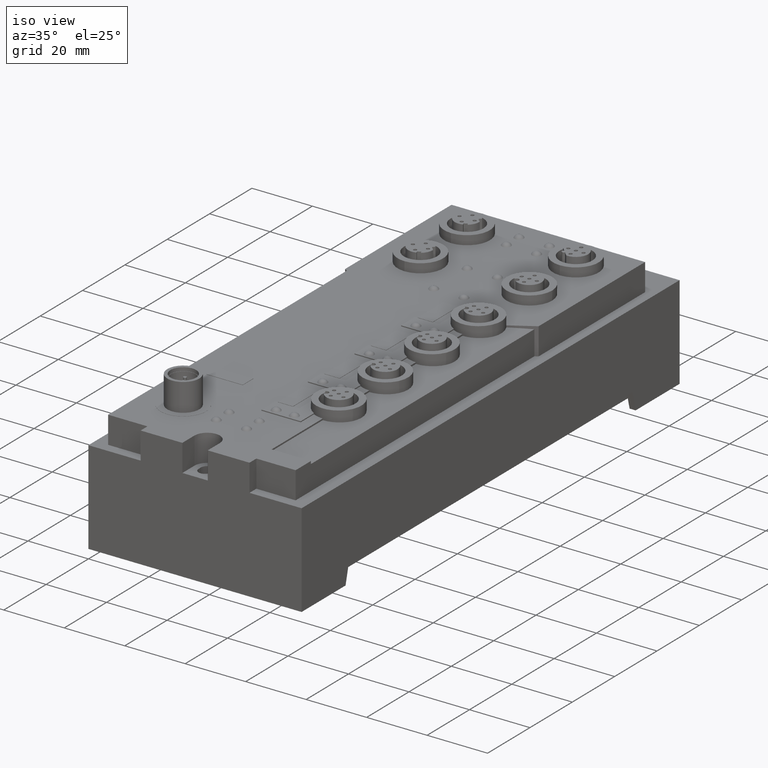
[diagram: clean part render]
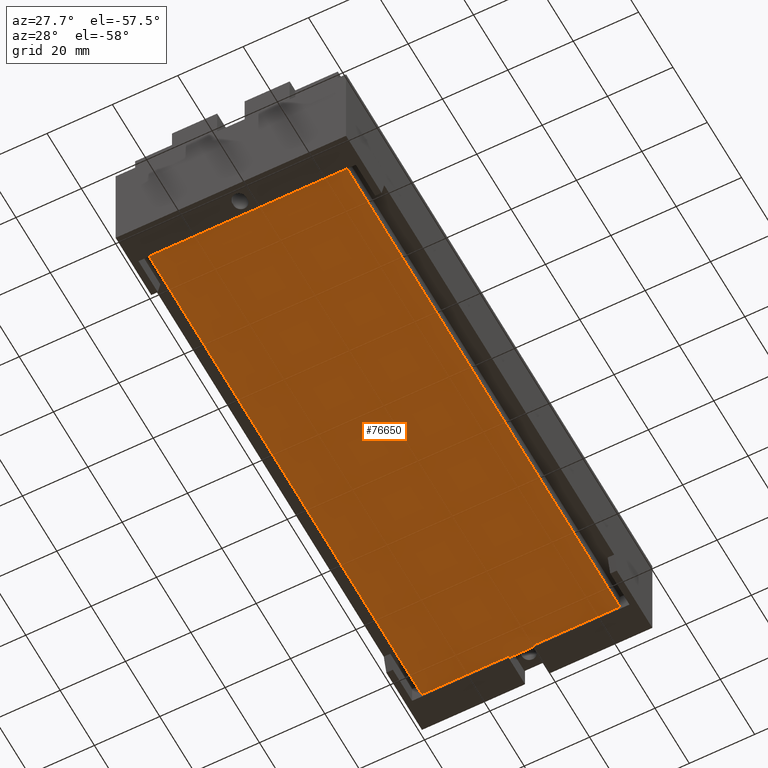
[diagram: tour spotlight — one face highlighted and labeled with its STEP entity id]
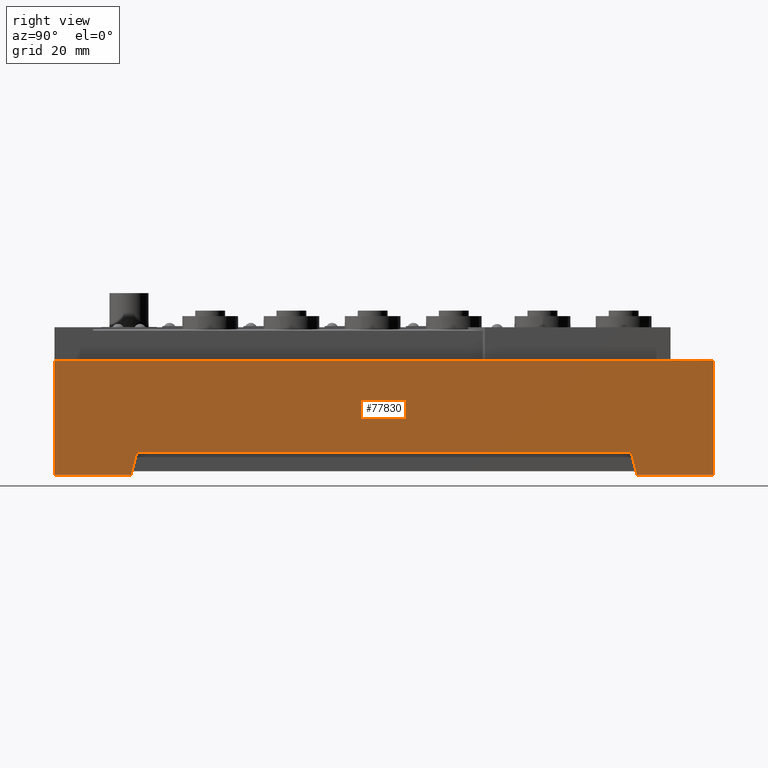
[diagram: tour spotlight — one face highlighted and labeled with its STEP entity id]
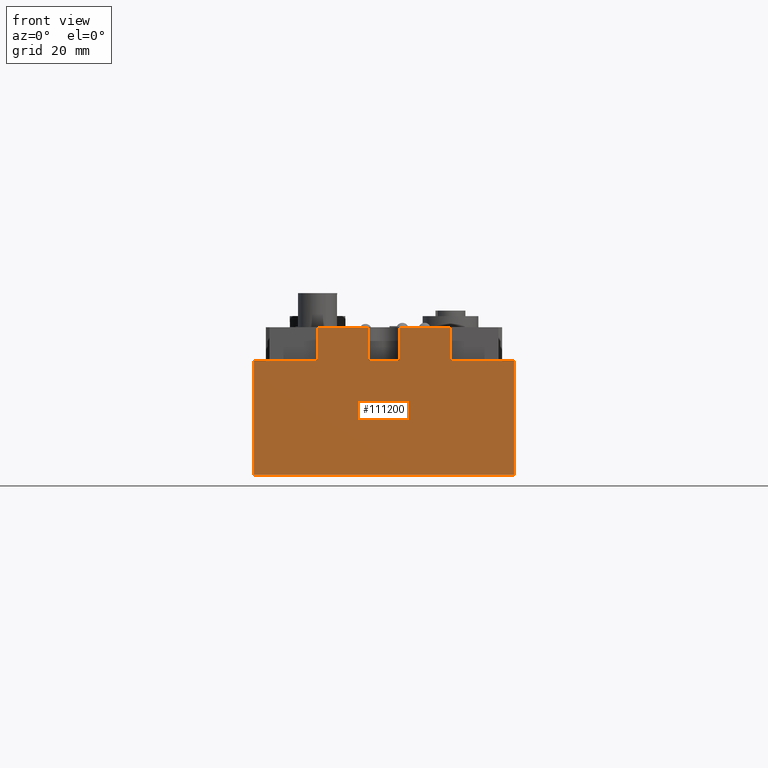
[diagram: tour spotlight — one face highlighted and labeled with its STEP entity id]
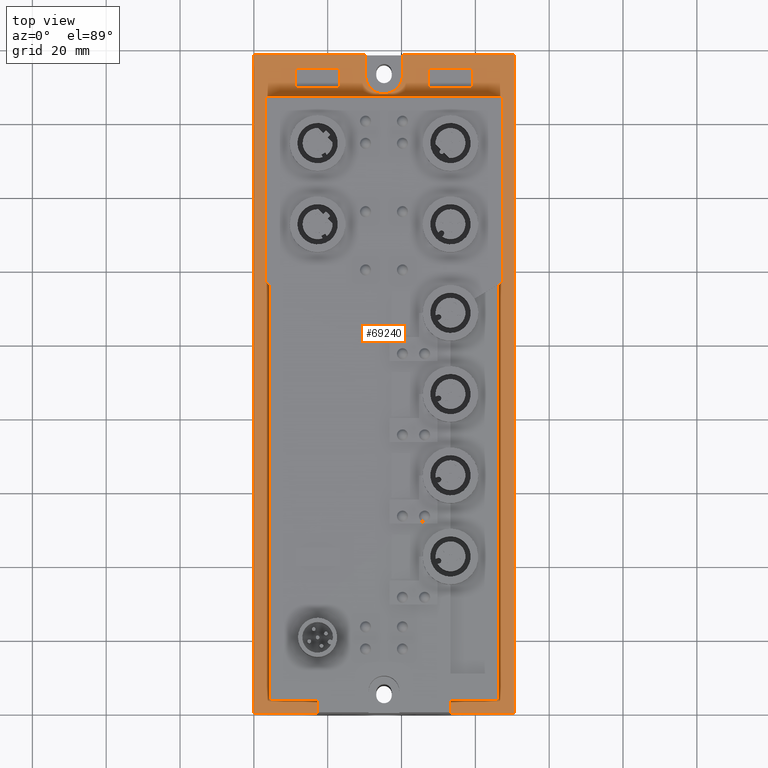
[diagram: tour spotlight — one face highlighted and labeled with its STEP entity id]
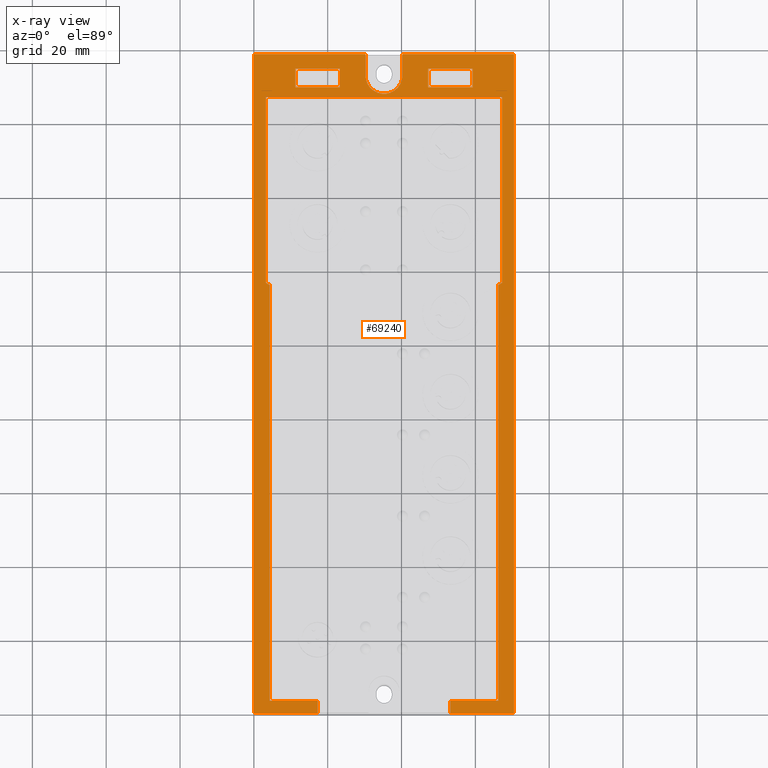
[diagram: x-ray of the same camera — body ghosted, this tour face saturated]
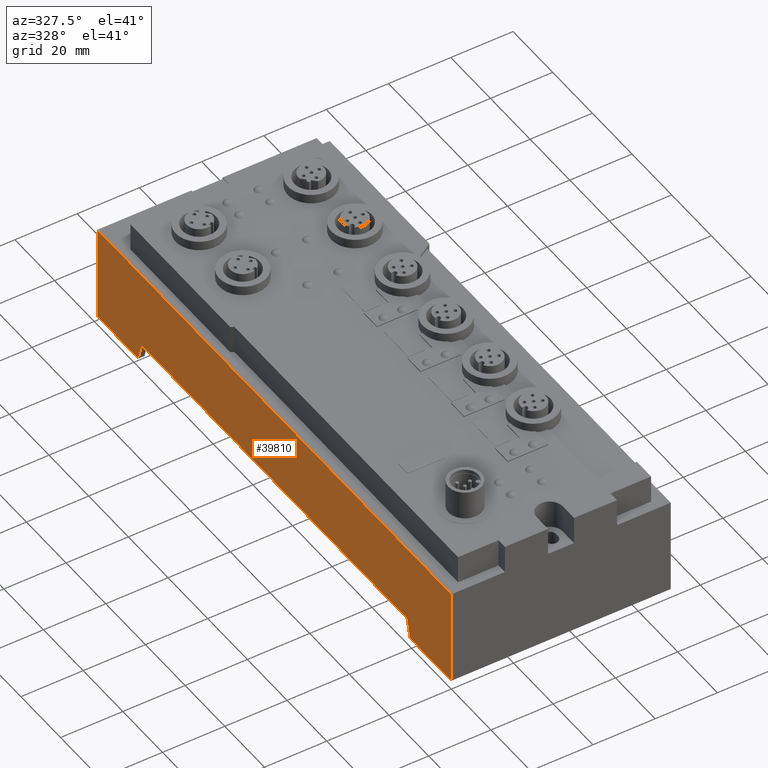
[diagram: tour spotlight — one face highlighted and labeled with its STEP entity id]
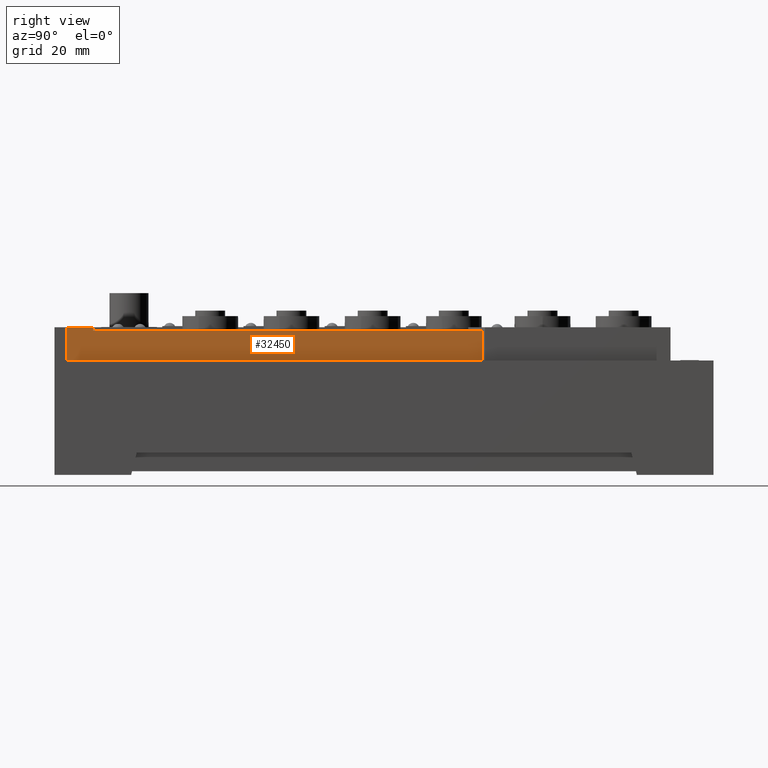
[diagram: tour spotlight — one face highlighted and labeled with its STEP entity id]
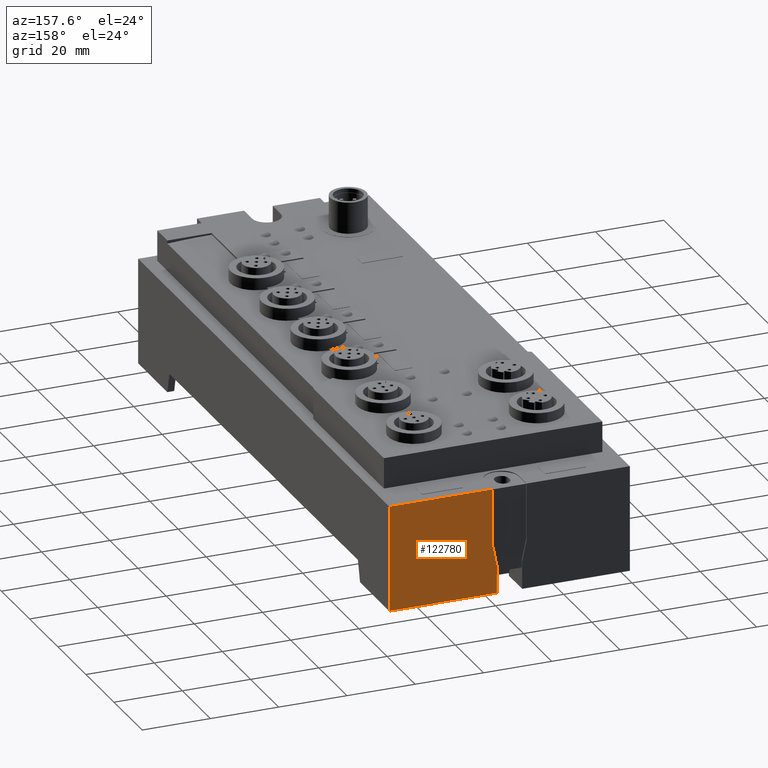
[diagram: tour spotlight — one face highlighted and labeled with its STEP entity id]
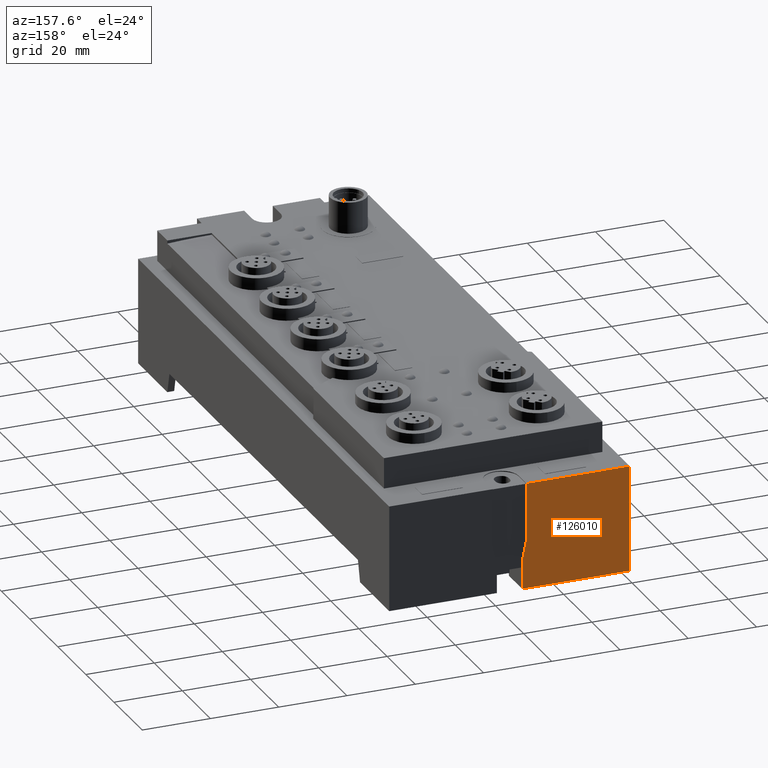
[diagram: tour spotlight — one face highlighted and labeled with its STEP entity id]
A machine part: a face-by-face anatomy tour. The part has 414 B-rep faces; the first image is the clean iso view, then the 8 largest visible faces are spotlighted one at a time (largest first), each with its STEP entity span.

Face 1 — auxiliary view, entity #76650. In plain terms, the highlighted planar face has unit normal (0, 0, -1).
Definition (entity closure, byte-faithful):
#4250=CARTESIAN_POINT('',(-72.800000000018,-36.9250000000052,
-38.9999999999925));
#4260=VERTEX_POINT('',#4250);
#4430=CARTESIAN_POINT('',(-72.800000000018,-196.424999999996,
-38.9999999999925));
#4440=VERTEX_POINT('',#4430);
#4470=CARTESIAN_POINT('',(-72.800000000018,0.,-38.9999999999925));
#4480=DIRECTION('',(0.,-1.,0.));
#4490=VECTOR('',#4480,1.);
#4500=LINE('',#4470,#4490);
#4510=EDGE_CURVE('',#4260,#4440,#4500,.T.);
#8050=CARTESIAN_POINT('',(-46.2,-36.9250000000052,-38.9999999999925));
#8060=VERTEX_POINT('',#8050);
#8090=CARTESIAN_POINT('',(-46.2,0.,-38.9999999999925));
#8100=DIRECTION('',(0.,-1.,0.));
#8110=VECTOR('',#8100,1.);
#8120=LINE('',#8090,#8110);
#8130=CARTESIAN_POINT('',(-46.2,-36.4250000000052,-38.9999999999925));
#8140=VERTEX_POINT('',#8130);
#8150=EDGE_CURVE('',#8140,#8060,#8120,.T.);
#33090=CARTESIAN_POINT('',(-12.200000000018,-36.9250000000052,
-38.9999999999925));
#33100=VERTEX_POINT('',#33090);
#33340=CARTESIAN_POINT('',(-38.8,-36.9250000000052,-38.9999999999925));
#33350=VERTEX_POINT('',#33340);
#33380=CARTESIAN_POINT('',(0.,-36.9250000000052,-38.9999999999925));
#33390=DIRECTION('',(1.,0.,0.));
#33400=VECTOR('',#33390,1.);
#33410=LINE('',#33380,#33400);
#33420=EDGE_CURVE('',#33350,#33100,#33410,.T.);
#67650=CARTESIAN_POINT('',(0.,-36.9250000000052,-38.9999999999925));
#67660=DIRECTION('',(-1.,0.,0.));
#67670=VECTOR('',#67660,1.);
#67680=LINE('',#67650,#67670);
#67690=EDGE_CURVE('',#8060,#4260,#67680,.T.);
#76260=CARTESIAN_POINT('',(-52.9939465163615,-162.331932113799,
-38.9999999999925));
#76270=DIRECTION('',(0.,0.,-1.));
#76280=DIRECTION('',(-1.,0.,0.));
#76290=AXIS2_PLACEMENT_3D('',#76260,#76270,#76280);
#76300=PLANE('',#76290);
#76310=CARTESIAN_POINT('',(-38.8,0.,-38.9999999999925));
#76320=DIRECTION('',(0.,1.,0.));
#76330=VECTOR('',#76320,1.);
#76340=LINE('',#76310,#76330);
#76350=CARTESIAN_POINT('',(-38.8,-36.4250000000052,-38.9999999999925));
#76360=VERTEX_POINT('',#76350);
#76370=EDGE_CURVE('',#33350,#76360,#76340,.T.);
#76380=ORIENTED_EDGE('',*,*,#76370,.F.);
#76390=CARTESIAN_POINT('',(0.,-36.4250000000052,-38.9999999999925));
#76400=DIRECTION('',(-1.,0.,0.));
#76410=VECTOR('',#76400,1.);
#76420=LINE('',#76390,#76410);
#76430=EDGE_CURVE('',#76360,#8140,#76420,.T.);
#76440=ORIENTED_EDGE('',*,*,#76430,.F.);
#76450=ORIENTED_EDGE('',*,*,#8150,.F.);
#76460=ORIENTED_EDGE('',*,*,#67690,.F.);
#76470=ORIENTED_EDGE('',*,*,#4510,.F.);
#76480=CARTESIAN_POINT('',(0.,-196.424999999996,-38.9999999999925));
#76490=DIRECTION('',(-1.,0.,0.));
#76500=VECTOR('',#76490,1.);
#76510=LINE('',#76480,#76500);
#76520=CARTESIAN_POINT('',(-12.200000000018,-196.424999999996,
-38.9999999999925));
#76530=VERTEX_POINT('',#76520);
#76540=EDGE_CURVE('',#76530,#4440,#76510,.T.);
#76550=ORIENTED_EDGE('',*,*,#76540,.T.);
#76560=CARTESIAN_POINT('',(-12.200000000018,0.,-38.9999999999925));
#76570=DIRECTION('',(0.,1.,0.));
#76580=VECTOR('',#76570,1.);
#76590=LINE('',#76560,#76580);
#76600=EDGE_CURVE('',#76530,#33100,#76590,.T.);
#76610=ORIENTED_EDGE('',*,*,#76600,.F.);
#76620=ORIENTED_EDGE('',*,*,#33420,.T.);
#76630=EDGE_LOOP('',(#76620,#76610,#76550,#76470,#76460,#76450,#76440,
#76380));
#76640=FACE_OUTER_BOUND('',#76630,.T.);
#76650=ADVANCED_FACE('',(#76640),#76300,.T.);

Face 2 — right view, entity #77830. In plain terms, the highlighted planar face has unit normal (1, 0, 0).
Definition (entity closure, byte-faithful):
#3800=CARTESIAN_POINT('',(-7.25000000000002,-185.175,-39.9999999999976))
;
#3810=VERTEX_POINT('',#3800);
#3840=CARTESIAN_POINT('',(-7.25000000000002,-175.175,0.));
#3850=DIRECTION('',(0.,-0.242535625036333,-0.970142500145332));
#3860=VECTOR('',#3850,1.);
#3870=LINE('',#3840,#3860);
#3880=CARTESIAN_POINT('',(-7.25000000000002,-183.675,-33.9999999999976))
;
#3890=VERTEX_POINT('',#3880);
#3900=EDGE_CURVE('',#3890,#3810,#3870,.T.);
#23680=CARTESIAN_POINT('',(-7.25000000000002,0.,-33.9999999999976));
#23690=DIRECTION('',(0.,1.,0.));
#23700=VECTOR('',#23690,1.);
#23710=LINE('',#23680,#23700);
#23720=CARTESIAN_POINT('',(-7.25000000000002,-49.6750000000004,
-33.9999999999976));
#23730=VERTEX_POINT('',#23720);
#23740=EDGE_CURVE('',#3890,#23730,#23710,.T.);
#68540=CARTESIAN_POINT('',(-7.25000000000002,-27.425,-9.00000000000003))
;
#68550=VERTEX_POINT('',#68540);
#68580=CARTESIAN_POINT('',(-7.25000000000002,0.,-9.00000000000003));
#68590=DIRECTION('',(0.,1.,0.));
#68600=VECTOR('',#68590,1.);
#68610=LINE('',#68580,#68600);
#68620=CARTESIAN_POINT('',(-7.25000000000002,-205.925,-9.00000000000003)
);
#68630=VERTEX_POINT('',#68620);
#68640=EDGE_CURVE('',#68630,#68550,#68610,.T.);
#77370=CARTESIAN_POINT('',(-7.25000000000002,-205.925,-39.9999999999976)
);
#77380=DIRECTION('',(1.,0.,0.));
#77390=DIRECTION('',(0.,1.,0.));
#77400=AXIS2_PLACEMENT_3D('',#77370,#77380,#77390);
#77410=PLANE('',#77400);
#77420=CARTESIAN_POINT('',(-7.25000000000002,-27.425,0.));
#77430=DIRECTION('',(0.,0.,1.));
#77440=VECTOR('',#77430,1.);
#77450=LINE('',#77420,#77440);
#77460=CARTESIAN_POINT('',(-7.25000000000002,-27.425,-39.9999999999976))
;
#77470=VERTEX_POINT('',#77460);
#77480=EDGE_CURVE('',#77470,#68550,#77450,.T.);
#77490=ORIENTED_EDGE('',*,*,#77480,.T.);
#77500=CARTESIAN_POINT('',(-7.25000000000002,0.,-39.9999999999976));
#77510=DIRECTION('',(0.,1.,0.));
#77520=VECTOR('',#77510,1.);
#77530=LINE('',#77500,#77520);
#77540=CARTESIAN_POINT('',(-7.25000000000002,-48.1750000000004,
-39.9999999999976));
#77550=VERTEX_POINT('',#77540);
#77560=EDGE_CURVE('',#77550,#77470,#77530,.T.);
#77570=ORIENTED_EDGE('',*,*,#77560,.T.);
#77580=CARTESIAN_POINT('',(-7.25000000000002,-58.1749999999998,0.));
#77590=DIRECTION('',(0.,-0.242535625036335,0.970142500145331));
#77600=VECTOR('',#77590,1.);
#77610=LINE('',#77580,#77600);
#77620=EDGE_CURVE('',#77550,#23730,#77610,.T.);
#77630=ORIENTED_EDGE('',*,*,#77620,.F.);
#77640=ORIENTED_EDGE('',*,*,#23740,.T.);
#77650=ORIENTED_EDGE('',*,*,#3900,.F.);
#77660=CARTESIAN_POINT('',(-7.25000000000002,0.,-39.9999999999976));
#77670=DIRECTION('',(0.,1.,0.));
#77680=VECTOR('',#77670,1.);
#77690=LINE('',#77660,#77680);
#77700=CARTESIAN_POINT('',(-7.25000000000002,-205.925,-39.9999999999976)
);
#77710=VERTEX_POINT('',#77700);
#77720=EDGE_CURVE('',#77710,#3810,#77690,.T.);
#77730=ORIENTED_EDGE('',*,*,#77720,.T.);
#77740=CARTESIAN_POINT('',(-7.25000000000002,-205.925,0.));
#77750=DIRECTION('',(0.,0.,1.));
#77760=VECTOR('',#77750,1.);
#77770=LINE('',#77740,#77760);
#77780=EDGE_CURVE('',#77710,#68630,#77770,.T.);
#77790=ORIENTED_EDGE('',*,*,#77780,.F.);
#77800=ORIENTED_EDGE('',*,*,#68640,.F.);
#77810=EDGE_LOOP('',(#77800,#77790,#77730,#77650,#77640,#77630,#77570,
#77490));
#77820=FACE_OUTER_BOUND('',#77810,.T.);
#77830=ADVANCED_FACE('',(#77820),#77410,.T.);

Face 3 — front view, entity #111200. In plain terms, the highlighted planar face has unit normal (0, -1, 0).
Definition (entity closure, byte-faithful):
#21910=CARTESIAN_POINT('',(-38.3,-205.925,-9.00000000000003));
#21920=VERTEX_POINT('',#21910);
#22070=CARTESIAN_POINT('',(-38.3,-205.925,-6.77571532794995E-12));
#22080=VERTEX_POINT('',#22070);
#22110=CARTESIAN_POINT('',(-38.3,-205.925,0.));
#22120=DIRECTION('',(0.,0.,-1.));
#22130=VECTOR('',#22120,1.);
#22140=LINE('',#22110,#22130);
#22150=EDGE_CURVE('',#22080,#21920,#22140,.T.);
#25300=CARTESIAN_POINT('',(-46.7,-205.925,0.));
#25310=DIRECTION('',(0.,0.,-1.));
#25320=VECTOR('',#25310,1.);
#25330=LINE('',#25300,#25320);
#25340=CARTESIAN_POINT('',(-46.7,-205.925,-7.259573532435E-12));
#25350=VERTEX_POINT('',#25340);
#25360=CARTESIAN_POINT('',(-46.7,-205.925,-9.00000000000003));
#25370=VERTEX_POINT('',#25360);
#25380=EDGE_CURVE('',#25350,#25370,#25330,.T.);
#39280=CARTESIAN_POINT('',(-77.75,-205.925,-9.00000000000003));
#39290=VERTEX_POINT('',#39280);
#39340=CARTESIAN_POINT('',(-77.75,-205.925,0.));
#39350=DIRECTION('',(0.,0.,-1.));
#39360=VECTOR('',#39350,1.);
#39370=LINE('',#39340,#39360);
#39380=CARTESIAN_POINT('',(-77.75,-205.925,-39.9999999999976));
#39390=VERTEX_POINT('',#39380);
#39400=EDGE_CURVE('',#39290,#39390,#39370,.T.);
#48240=CARTESIAN_POINT('',(0.,-205.925,-9.00000000000003));
#48250=DIRECTION('',(-1.,0.,0.));
#48260=VECTOR('',#48250,1.);
#48270=LINE('',#48240,#48260);
#48280=EDGE_CURVE('',#21920,#25370,#48270,.T.);
#68160=CARTESIAN_POINT('',(-60.5000000000001,-205.925,-9.00000000000003)
);
#68170=VERTEX_POINT('',#68160);
#68200=CARTESIAN_POINT('',(0.,-205.925,-9.00000000000003));
#68210=DIRECTION('',(1.,0.,0.));
#68220=VECTOR('',#68210,1.);
#68230=LINE('',#68200,#68220);
#68240=EDGE_CURVE('',#39290,#68170,#68230,.T.);
#68620=CARTESIAN_POINT('',(-7.25000000000002,-205.925,-9.00000000000003)
);
#68630=VERTEX_POINT('',#68620);
#68660=CARTESIAN_POINT('',(-24.5,-205.925,-9.00000000000003));
#68670=VERTEX_POINT('',#68660);
#68680=EDGE_CURVE('',#68670,#68630,#68230,.T.);
#72070=CARTESIAN_POINT('',(-24.5,-205.925,0.));
#72080=DIRECTION('',(0.,0.,1.));
#72090=VECTOR('',#72080,1.);
#72100=LINE('',#72070,#72090);
#72110=CARTESIAN_POINT('',(-24.5,-205.925,-5.98080542058166E-12));
#72120=VERTEX_POINT('',#72110);
#72130=EDGE_CURVE('',#68670,#72120,#72100,.T.);
#77700=CARTESIAN_POINT('',(-7.25000000000002,-205.925,-39.9999999999976)
);
#77710=VERTEX_POINT('',#77700);
#77740=CARTESIAN_POINT('',(-7.25000000000002,-205.925,0.));
#77750=DIRECTION('',(0.,0.,1.));
#77760=VECTOR('',#77750,1.);
#77770=LINE('',#77740,#77760);
#77780=EDGE_CURVE('',#77710,#68630,#77770,.T.);
#97390=CARTESIAN_POINT('',(0.,-205.925,-39.9999999999976));
#97400=DIRECTION('',(1.,0.,0.));
#97410=VECTOR('',#97400,1.);
#97420=LINE('',#97390,#97410);
#97430=EDGE_CURVE('',#39390,#77710,#97420,.T.);
#110880=CARTESIAN_POINT('',(-77.75,-205.925,-39.9999999999976));
#110890=DIRECTION('',(0.,-1.,0.));
#110900=DIRECTION('',(1.,0.,0.));
#110910=AXIS2_PLACEMENT_3D('',#110880,#110890,#110900);
#110920=PLANE('',#110910);
#110930=ORIENTED_EDGE('',*,*,#68680,.F.);
#110940=ORIENTED_EDGE('',*,*,#77780,.T.);
#110950=ORIENTED_EDGE('',*,*,#97430,.T.);
#110960=ORIENTED_EDGE('',*,*,#39400,.T.);
#110970=ORIENTED_EDGE('',*,*,#68240,.F.);
#110980=CARTESIAN_POINT('',(-60.5000000000001,-205.925,0.));
#110990=DIRECTION('',(0.,0.,-1.));
#111000=VECTOR('',#110990,1.);
#111010=LINE('',#110980,#111000);
#111020=CARTESIAN_POINT('',(-60.5000000000001,-205.925,
-8.05448343980329E-12));
#111030=VERTEX_POINT('',#111020);
#111040=EDGE_CURVE('',#111030,#68170,#111010,.T.);
#111050=ORIENTED_EDGE('',*,*,#111040,.T.);
#111060=CARTESIAN_POINT('',(0.,-205.925,-4.56876826558962E-12));
#111070=DIRECTION('',(1.,0.,5.76021672006006E-14));
#111080=VECTOR('',#111070,1.);
#111090=LINE('',#111060,#111080);
#111100=EDGE_CURVE('',#111030,#25350,#111090,.T.);
#111110=ORIENTED_EDGE('',*,*,#111100,.F.);
#111120=ORIENTED_EDGE('',*,*,#25380,.F.);
#111130=ORIENTED_EDGE('',*,*,#48280,.T.);
#111140=ORIENTED_EDGE('',*,*,#22150,.T.);
#111150=EDGE_CURVE('',#22080,#72120,#111090,.T.);
#111160=ORIENTED_EDGE('',*,*,#111150,.F.);
#111170=ORIENTED_EDGE('',*,*,#72130,.T.);
#111180=EDGE_LOOP('',(#111170,#111160,#111140,#111130,#111120,#111110,
#111050,#110970,#110960,#110950,#110940,#110930));
#111190=FACE_OUTER_BOUND('',#111180,.T.);
#111200=ADVANCED_FACE('',(#111190),#110920,.T.);

Face 4 — top view, entity #69240. An x-ray twin of the same camera follows (body ghosted, this face saturated) — the face is partly hidden behind the body. In plain terms, the highlighted planar face has unit normal (0, 0, -1).
Definition (entity closure, byte-faithful):
#2820=CARTESIAN_POINT('',(-30.4999999999999,-31.3749999999998,
-9.00000000000003));
#2830=VERTEX_POINT('',#2820);
#3000=CARTESIAN_POINT('',(-30.4999999999999,-36.3749999999998,
-9.00000000000003));
#3010=VERTEX_POINT('',#3000);
#3040=CARTESIAN_POINT('',(-30.4999999999999,0.,-9.00000000000003));
#3050=DIRECTION('',(-1.83697019872103E-16,-1.,0.));
#3060=VECTOR('',#3050,1.);
#3070=LINE('',#3040,#3060);
#3080=EDGE_CURVE('',#2830,#3010,#3070,.T.);
#3310=CARTESIAN_POINT('',(-47.5,-33.1750000000001,-9.00000000000003));
#3320=VERTEX_POINT('',#3310);
#3480=CARTESIAN_POINT('',(-37.5,-33.1750000000001,-9.00000000000003));
#3490=VERTEX_POINT('',#3480);
#3520=CARTESIAN_POINT('',(-42.5,-33.1750000000001,-9.00000000000003));
#3530=DIRECTION('',(0.,0.,1.));
#3540=DIRECTION('',(1.,0.,0.));
#3550=AXIS2_PLACEMENT_3D('',#3520,#3530,#3540);
#3560=CIRCLE('',#3550,5.);
#3570=EDGE_CURVE('',#3320,#3490,#3560,.T.);
#6120=CARTESIAN_POINT('',(-10.5,-89.3499999999995,-9.00000000000003));
#6130=VERTEX_POINT('',#6120);
#6160=CARTESIAN_POINT('',(0.,-83.0499999999995,-9.00000000000003));
#6170=DIRECTION('',(-0.857492925712543,-0.514495755427529,0.));
#6180=VECTOR('',#6170,1.);
#6190=LINE('',#6160,#6180);
#6200=CARTESIAN_POINT('',(-11.5,-89.9499999999995,-9.00000000000003));
#6210=VERTEX_POINT('',#6200);
#6220=EDGE_CURVE('',#6130,#6210,#6190,.T.);
#15390=CARTESIAN_POINT('',(-54.4999999999987,0.,-9.00000000000003));
#15400=DIRECTION('',(-1.83697019872103E-16,-1.,0.));
#15410=VECTOR('',#15400,1.);
#15420=LINE('',#15390,#15410);
#15430=CARTESIAN_POINT('',(-54.4999999999987,-31.3749999999998,
-9.00000000000003));
#15440=VERTEX_POINT('',#15430);
#15450=CARTESIAN_POINT('',(-54.4999999999987,-36.3749999999998,
-9.00000000000003));
#15460=VERTEX_POINT('',#15450);
#15470=EDGE_CURVE('',#15440,#15460,#15420,.T.);
#29700=CARTESIAN_POINT('',(-66.4999999999987,-36.3749999999998,
-9.00000000000003));
#29710=VERTEX_POINT('',#29700);
#29810=CARTESIAN_POINT('',(0.,-36.3749999999998,-9.00000000000003));
#29820=DIRECTION('',(1.,-1.22464679914735E-16,0.));
#29830=VECTOR('',#29820,1.);
#29840=LINE('',#29810,#29830);
#29850=EDGE_CURVE('',#29710,#15460,#29840,.T.);
#32050=CARTESIAN_POINT('',(-11.5,0.,-9.00000000000003));
#32060=DIRECTION('',(-8.67007438644468E-28,1.,0.));
#32070=VECTOR('',#32060,1.);
#32080=LINE('',#32050,#32070);
#32090=CARTESIAN_POINT('',(-11.5,-202.675,-9.00000000000003));
#32100=VERTEX_POINT('',#32090);
#32110=EDGE_CURVE('',#32100,#6210,#32080,.T.);
#39240=CARTESIAN_POINT('',(-77.75,0.,-9.00000000000003));
#39250=DIRECTION('',(0.,1.,0.));
#39260=VECTOR('',#39250,1.);
#39270=LINE('',#39240,#39260);
#39280=CARTESIAN_POINT('',(-77.75,-205.925,-9.00000000000003));
#39290=VERTEX_POINT('',#39280);
#39300=CARTESIAN_POINT('',(-77.75,-27.425,-9.00000000000003));
#39310=VERTEX_POINT('',#39300);
#39320=EDGE_CURVE('',#39290,#39310,#39270,.T.);
#52570=CARTESIAN_POINT('',(-60.5000000000001,-202.675,-9.00000000000003)
);
#52580=VERTEX_POINT('',#52570);
#52610=CARTESIAN_POINT('',(0.,-202.675,-9.00000000000003));
#52620=DIRECTION('',(1.,-8.6701324168676E-28,0.));
#52630=VECTOR('',#52620,1.);
#52640=LINE('',#52610,#52630);
#52650=CARTESIAN_POINT('',(-73.5000000000001,-202.675,-9.00000000000003)
);
#52660=VERTEX_POINT('',#52650);
#52670=EDGE_CURVE('',#52660,#52580,#52640,.T.);
#54390=CARTESIAN_POINT('',(-74.5000000000001,-89.3499999999995,
-9.00000000000003));
#54400=VERTEX_POINT('',#54390);
#54430=CARTESIAN_POINT('',(-74.5,0.,-9.00000000000003));
#54440=DIRECTION('',(0.,1.,0.));
#54450=VECTOR('',#54440,1.);
#54460=LINE('',#54430,#54450);
#54470=CARTESIAN_POINT('',(-74.5,-39.075,-9.00000000000003));
#54480=VERTEX_POINT('',#54470);
#54490=EDGE_CURVE('',#54400,#54480,#54460,.T.);
#54810=CARTESIAN_POINT('',(0.,-202.675,-9.00000000000003));
#54820=DIRECTION('',(1.,8.6701324168676E-28,0.));
#54830=VECTOR('',#54820,1.);
#54840=LINE('',#54810,#54830);
#54850=CARTESIAN_POINT('',(-24.5,-202.675,-9.00000000000003));
#54860=VERTEX_POINT('',#54850);
#54870=EDGE_CURVE('',#54860,#32100,#54840,.T.);
#66760=CARTESIAN_POINT('',(0.,-31.3749999999998,-9.00000000000003));
#66770=DIRECTION('',(-1.,1.22464679914735E-16,0.));
#66780=VECTOR('',#66770,1.);
#66790=LINE('',#66760,#66780);
#66800=CARTESIAN_POINT('',(-18.4999999999999,-31.3749999999998,
-9.00000000000003));
#66810=VERTEX_POINT('',#66800);
#66820=EDGE_CURVE('',#66810,#2830,#66790,.T.);
#67360=CARTESIAN_POINT('',(-10.5,-39.075,-9.00000000000003));
#67370=VERTEX_POINT('',#67360);
#67490=CARTESIAN_POINT('',(0.,-39.075,-9.00000000000003));
#67500=DIRECTION('',(-1.,0.,0.));
#67510=VECTOR('',#67500,1.);
#67520=LINE('',#67490,#67510);
#67530=EDGE_CURVE('',#67370,#54480,#67520,.T.);
#67910=CARTESIAN_POINT('',(-39.303452,-204.600416800003,
-9.00000000000003));
#67920=DIRECTION('',(0.,0.,-1.));
#67930=DIRECTION('',(1.,0.,0.));
#67940=AXIS2_PLACEMENT_3D('',#67910,#67920,#67930);
#67950=PLANE('',#67940);
#67960=ORIENTED_EDGE('',*,*,#54490,.T.);
#67970=CARTESIAN_POINT('',(0.,-134.05,-9.00000000000003));
#67980=DIRECTION('',(-0.857492925712543,0.514495755427529,0.));
#67990=VECTOR('',#67980,1.);
#68000=LINE('',#67970,#67990);
#68010=CARTESIAN_POINT('',(-73.5000000000001,-89.9499999999995,
-9.00000000000003));
#68020=VERTEX_POINT('',#68010);
#68030=EDGE_CURVE('',#68020,#54400,#68000,.T.);
#68040=ORIENTED_EDGE('',*,*,#68030,.T.);
#68050=CARTESIAN_POINT('',(-73.5000000000001,0.,-9.00000000000003));
#68060=DIRECTION('',(-8.67007438644468E-28,-1.,0.));
#68070=VECTOR('',#68060,1.);
#68080=LINE('',#68050,#68070);
#68090=EDGE_CURVE('',#68020,#52660,#68080,.T.);
#68100=ORIENTED_EDGE('',*,*,#68090,.F.);
#68110=ORIENTED_EDGE('',*,*,#52670,.F.);
#68120=CARTESIAN_POINT('',(-60.5000000000001,0.,-9.00000000000003));
#68130=DIRECTION('',(0.,1.,0.));
#68140=VECTOR('',#68130,1.);
#68150=LINE('',#68120,#68140);
#68160=CARTESIAN_POINT('',(-60.5000000000001,-205.925,-9.00000000000003)
);
#68170=VERTEX_POINT('',#68160);
#68180=EDGE_CURVE('',#68170,#52580,#68150,.T.);
#68190=ORIENTED_EDGE('',*,*,#68180,.T.);
#68200=CARTESIAN_POINT('',(0.,-205.925,-9.00000000000003));
#68210=DIRECTION('',(1.,0.,0.));
#68220=VECTOR('',#68210,1.);
#68230=LINE('',#68200,#68220);
#68240=EDGE_CURVE('',#39290,#68170,#68230,.T.);
#68250=ORIENTED_EDGE('',*,*,#68240,.T.);
#68260=ORIENTED_EDGE('',*,*,#39320,.F.);
#68270=CARTESIAN_POINT('',(0.,-27.425,-9.00000000000003));
#68280=DIRECTION('',(1.,0.,0.));
#68290=VECTOR('',#68280,1.);
#68300=LINE('',#68270,#68290);
#68310=CARTESIAN_POINT('',(-47.5,-27.425,-9.00000000000003));
#68320=VERTEX_POINT('',#68310);
#68330=EDGE_CURVE('',#39310,#68320,#68300,.T.);
#68340=ORIENTED_EDGE('',*,*,#68330,.F.);
#68350=CARTESIAN_POINT('',(-47.5,0.,-9.00000000000003));
#68360=DIRECTION('',(0.,-1.,0.));
#68370=VECTOR('',#68360,1.);
#68380=LINE('',#68350,#68370);
#68390=EDGE_CURVE('',#68320,#3320,#68380,.T.);
#68400=ORIENTED_EDGE('',*,*,#68390,.F.);
#68410=ORIENTED_EDGE('',*,*,#3570,.F.);
#68420=CARTESIAN_POINT('',(-37.5,0.,-9.00000000000003));
#68430=DIRECTION('',(0.,1.,0.));
#68440=VECTOR('',#68430,1.);
#68450=LINE('',#68420,#68440);
#68460=CARTESIAN_POINT('',(-37.5,-27.425,-9.00000000000003));
#68470=VERTEX_POINT('',#68460);
#68480=EDGE_CURVE('',#3490,#68470,#68450,.T.);
#68490=ORIENTED_EDGE('',*,*,#68480,.F.);
#68500=CARTESIAN_POINT('',(0.,-27.425,-9.00000000000003));
#68510=DIRECTION('',(-1.,0.,0.));
#68520=VECTOR('',#68510,1.);
#68530=LINE('',#68500,#68520);
#68540=CARTESIAN_POINT('',(-7.25000000000002,-27.425,-9.00000000000003))
;
#68550=VERTEX_POINT('',#68540);
#68560=EDGE_CURVE('',#68550,#68470,#68530,.T.);
#68570=ORIENTED_EDGE('',*,*,#68560,.T.);
#68580=CARTESIAN_POINT('',(-7.25000000000002,0.,-9.00000000000003));
#68590=DIRECTION('',(0.,1.,0.));
#68600=VECTOR('',#68590,1.);
#68610=LINE('',#68580,#68600);
#68620=CARTESIAN_POINT('',(-7.25000000000002,-205.925,-9.00000000000003)
);
#68630=VERTEX_POINT('',#68620);
#68640=EDGE_CURVE('',#68630,#68550,#68610,.T.);
#68650=ORIENTED_EDGE('',*,*,#68640,.T.);
#68660=CARTESIAN_POINT('',(-24.5,-205.925,-9.00000000000003));
#68670=VERTEX_POINT('',#68660);
#68680=EDGE_CURVE('',#68670,#68630,#68230,.T.);
#68690=ORIENTED_EDGE('',*,*,#68680,.T.);
#68700=CARTESIAN_POINT('',(-24.5,0.,-9.00000000000003));
#68710=DIRECTION('',(0.,-1.,0.));
#68720=VECTOR('',#68710,1.);
#68730=LINE('',#68700,#68720);
#68740=EDGE_CURVE('',#54860,#68670,#68730,.T.);
#68750=ORIENTED_EDGE('',*,*,#68740,.T.);
#68760=ORIENTED_EDGE('',*,*,#54870,.F.);
#68770=ORIENTED_EDGE('',*,*,#32110,.F.);
#68780=ORIENTED_EDGE('',*,*,#6220,.T.);
#68790=CARTESIAN_POINT('',(-10.5,0.,-9.00000000000003));
#68800=DIRECTION('',(0.,1.,0.));
#68810=VECTOR('',#68800,1.);
#68820=LINE('',#68790,#68810);
#68830=EDGE_CURVE('',#6130,#67370,#68820,.T.);
#68840=ORIENTED_EDGE('',*,*,#68830,.F.);
#68850=ORIENTED_EDGE('',*,*,#67530,.F.);
#68860=EDGE_LOOP('',(#68850,#68840,#68780,#68770,#68760,#68750,#68690,
#68650,#68570,#68490,#68410,#68400,#68340,#68260,#68250,#68190,#68110,
#68100,#68040,#67960));
#68870=FACE_OUTER_BOUND('',#68860,.T.);
#68880=ORIENTED_EDGE('',*,*,#66820,.F.);
#68890=ORIENTED_EDGE('',*,*,#3080,.F.);
#68900=CARTESIAN_POINT('',(0.,-36.3749999999998,-9.00000000000003));
#68910=DIRECTION('',(1.,-1.22464679914735E-16,0.));
#68920=VECTOR('',#68910,1.);
#68930=LINE('',#68900,#68920);
#68940=CARTESIAN_POINT('',(-18.4999999999999,-36.3749999999998,
-9.00000000000003));
#68950=VERTEX_POINT('',#68940);
#68960=EDGE_CURVE('',#3010,#68950,#68930,.T.);
#68970=ORIENTED_EDGE('',*,*,#68960,.F.);
#68980=CARTESIAN_POINT('',(-18.4999999999999,0.,-9.00000000000003));
#68990=DIRECTION('',(-1.83697019872103E-16,-1.,0.));
#69000=VECTOR('',#68990,1.);
#69010=LINE('',#68980,#69000);
#69020=EDGE_CURVE('',#66810,#68950,#69010,.T.);
#69030=ORIENTED_EDGE('',*,*,#69020,.T.);
#69040=EDGE_LOOP('',(#69030,#68970,#68890,#68880));
#69050=FACE_BOUND('',#69040,.T.);
#69060=CARTESIAN_POINT('',(0.,-31.3749999999998,-9.00000000000003));
#69070=DIRECTION('',(-1.,1.22464679914735E-16,0.));
#69080=VECTOR('',#69070,1.);
#69090=LINE('',#69060,#69080);
#69100=CARTESIAN_POINT('',(-66.4999999999987,-31.3749999999998,
-9.00000000000003));
#69110=VERTEX_POINT('',#69100);
#69120=EDGE_CURVE('',#15440,#69110,#69090,.T.);
#69130=ORIENTED_EDGE('',*,*,#69120,.F.);
#69140=CARTESIAN_POINT('',(-66.4999999999987,0.,-9.00000000000003));
#69150=DIRECTION('',(-1.83697019872103E-16,-1.,0.));
#69160=VECTOR('',#69150,1.);
#69170=LINE('',#69140,#69160);
#69180=EDGE_CURVE('',#69110,#29710,#69170,.T.);
#69190=ORIENTED_EDGE('',*,*,#69180,.F.);
#69200=ORIENTED_EDGE('',*,*,#29850,.F.);
#69210=ORIENTED_EDGE('',*,*,#15470,.T.);
#69220=EDGE_LOOP('',(#69210,#69200,#69190,#69130));
#69230=FACE_BOUND('',#69220,.T.);
#69240=ADVANCED_FACE('',(#68870,#69050,#69230),#67950,.F.);

Face 5 — auxiliary view, entity #39810. In plain terms, the highlighted planar face has unit normal (-1, 0, 0).
Definition (entity closure, byte-faithful):
#17990=CARTESIAN_POINT('',(-77.75,-27.425,-39.9999999999976));
#18000=VERTEX_POINT('',#17990);
#18030=CARTESIAN_POINT('',(-77.75,0.,-39.9999999999976));
#18040=DIRECTION('',(0.,1.,0.));
#18050=VECTOR('',#18040,1.);
#18060=LINE('',#18030,#18050);
#18070=CARTESIAN_POINT('',(-77.75,-48.1750000000004,-39.9999999999976));
#18080=VERTEX_POINT('',#18070);
#18090=EDGE_CURVE('',#18080,#18000,#18060,.T.);
#39190=CARTESIAN_POINT('',(-77.75,-185.175,-39.9999999999976));
#39200=DIRECTION('',(-1.,0.,0.));
#39210=DIRECTION('',(0.,-1.,0.));
#39220=AXIS2_PLACEMENT_3D('',#39190,#39200,#39210);
#39230=PLANE('',#39220);
#39240=CARTESIAN_POINT('',(-77.75,0.,-9.00000000000003));
#39250=DIRECTION('',(0.,1.,0.));
#39260=VECTOR('',#39250,1.);
#39270=LINE('',#39240,#39260);
#39280=CARTESIAN_POINT('',(-77.75,-205.925,-9.00000000000003));
#39290=VERTEX_POINT('',#39280);
#39300=CARTESIAN_POINT('',(-77.75,-27.425,-9.00000000000003));
#39310=VERTEX_POINT('',#39300);
#39320=EDGE_CURVE('',#39290,#39310,#39270,.T.);
#39330=ORIENTED_EDGE('',*,*,#39320,.T.);
#39340=CARTESIAN_POINT('',(-77.75,-205.925,0.));
#39350=DIRECTION('',(0.,0.,-1.));
#39360=VECTOR('',#39350,1.);
#39370=LINE('',#39340,#39360);
#39380=CARTESIAN_POINT('',(-77.75,-205.925,-39.9999999999976));
#39390=VERTEX_POINT('',#39380);
#39400=EDGE_CURVE('',#39290,#39390,#39370,.T.);
#39410=ORIENTED_EDGE('',*,*,#39400,.F.);
#39420=CARTESIAN_POINT('',(-77.75,0.,-39.9999999999976));
#39430=DIRECTION('',(0.,1.,0.));
#39440=VECTOR('',#39430,1.);
#39450=LINE('',#39420,#39440);
#39460=CARTESIAN_POINT('',(-77.75,-185.175,-39.9999999999976));
#39470=VERTEX_POINT('',#39460);
#39480=EDGE_CURVE('',#39390,#39470,#39450,.T.);
#39490=ORIENTED_EDGE('',*,*,#39480,.F.);
#39500=CARTESIAN_POINT('',(-77.75,-175.175,0.));
#39510=DIRECTION('',(0.,-0.242535625036333,-0.970142500145332));
#39520=VECTOR('',#39510,1.);
#39530=LINE('',#39500,#39520);
#39540=CARTESIAN_POINT('',(-77.75,-183.675,-33.9999999999976));
#39550=VERTEX_POINT('',#39540);
#39560=EDGE_CURVE('',#39550,#39470,#39530,.T.);
#39570=ORIENTED_EDGE('',*,*,#39560,.T.);
#39580=CARTESIAN_POINT('',(-77.75,0.,-33.9999999999976));
#39590=DIRECTION('',(0.,-1.,0.));
#39600=VECTOR('',#39590,1.);
#39610=LINE('',#39580,#39600);
#39620=CARTESIAN_POINT('',(-77.75,-49.6750000000004,-33.9999999999976));
#39630=VERTEX_POINT('',#39620);
#39640=EDGE_CURVE('',#39630,#39550,#39610,.T.);
#39650=ORIENTED_EDGE('',*,*,#39640,.T.);
#39660=CARTESIAN_POINT('',(-77.75,-58.1749999999998,0.));
#39670=DIRECTION('',(0.,-0.242535625036335,0.970142500145331));
#39680=VECTOR('',#39670,1.);
#39690=LINE('',#39660,#39680);
#39700=EDGE_CURVE('',#18080,#39630,#39690,.T.);
#39710=ORIENTED_EDGE('',*,*,#39700,.T.);
#39720=ORIENTED_EDGE('',*,*,#18090,.F.);
#39730=CARTESIAN_POINT('',(-77.75,-27.425,0.));
#39740=DIRECTION('',(0.,0.,1.));
#39750=VECTOR('',#39740,1.);
#39760=LINE('',#39730,#39750);
#39770=EDGE_CURVE('',#18000,#39310,#39760,.T.);
#39780=ORIENTED_EDGE('',*,*,#39770,.F.);
#39790=EDGE_LOOP('',(#39780,#39720,#39710,#39650,#39570,#39490,#39410,
#39330));
#39800=FACE_OUTER_BOUND('',#39790,.T.);
#39810=ADVANCED_FACE('',(#39800),#39230,.T.);

Face 6 — right view, entity #32450. In plain terms, the highlighted planar face has unit normal (1, 0, 0).
Definition (entity closure, byte-faithful):
#6200=CARTESIAN_POINT('',(-11.5,-89.9499999999995,-9.00000000000003));
#6210=VERTEX_POINT('',#6200);
#6240=CARTESIAN_POINT('',(-11.5,-89.9499999999995,0.));
#6250=DIRECTION('',(0.,2.42861286636752E-18,1.));
#6260=VECTOR('',#6250,1.);
#6270=LINE('',#6240,#6260);
#6280=CARTESIAN_POINT('',(-11.5,-89.9499999999995,-0.922947210858013));
#6290=VERTEX_POINT('',#6280);
#6300=EDGE_CURVE('',#6210,#6290,#6270,.T.);
#31990=CARTESIAN_POINT('',(-11.5,-204.075,-2.92722859665112));
#32000=DIRECTION('',(1.,8.67007438644468E-28,2.14274980605507E-41));
#32010=DIRECTION('',(0.,2.47143185922969E-14,-1.));
#32020=AXIS2_PLACEMENT_3D('',#31990,#32000,#32010);
#32030=PLANE('',#32020);
#32040=ORIENTED_EDGE('',*,*,#6300,.T.);
#32050=CARTESIAN_POINT('',(-11.5,0.,-9.00000000000003));
#32060=DIRECTION('',(-8.67007438644468E-28,1.,0.));
#32070=VECTOR('',#32060,1.);
#32080=LINE('',#32050,#32070);
#32090=CARTESIAN_POINT('',(-11.5,-202.675,-9.00000000000003));
#32100=VERTEX_POINT('',#32090);
#32110=EDGE_CURVE('',#32100,#6210,#32080,.T.);
#32120=ORIENTED_EDGE('',*,*,#32110,.T.);
#32130=CARTESIAN_POINT('',(-11.5,-202.675,0.));
#32140=DIRECTION('',(0.,2.47128706387656E-14,-1.));
#32150=VECTOR('',#32140,1.);
#32160=LINE('',#32130,#32150);
#32170=CARTESIAN_POINT('',(-11.5,-202.675,-5.07231227856334E-12));
#32180=VERTEX_POINT('',#32170);
#32190=EDGE_CURVE('',#32180,#32100,#32160,.T.);
#32200=ORIENTED_EDGE('',*,*,#32190,.T.);
#32210=CARTESIAN_POINT('',(-11.5,0.,4.88542484850659E-12));
#32220=DIRECTION('',(-8.64591552122229E-28,1.,4.91276825878505E-14));
#32230=VECTOR('',#32220,1.);
#32240=LINE('',#32210,#32230);
#32250=CARTESIAN_POINT('',(-11.5,-195.475,-4.71859296393082E-12));
#32260=VERTEX_POINT('',#32250);
#32270=EDGE_CURVE('',#32180,#32260,#32240,.T.);
#32280=ORIENTED_EDGE('',*,*,#32270,.F.);
#32290=CARTESIAN_POINT('',(-11.5,-195.475,0.));
#32300=DIRECTION('',(-2.14274980605507E-41,0.,1.));
#32310=VECTOR('',#32300,1.);
#32320=LINE('',#32290,#32310);
#32330=CARTESIAN_POINT('',(-11.5,-195.475,-0.922947210858013));
#32340=VERTEX_POINT('',#32330);
#32350=EDGE_CURVE('',#32340,#32260,#32320,.T.);
#32360=ORIENTED_EDGE('',*,*,#32350,.T.);
#32370=CARTESIAN_POINT('',(-11.5,-205.675,-0.922947210858013));
#32380=DIRECTION('',(0.,-1.,0.));
#32390=VECTOR('',#32380,1.);
#32400=LINE('',#32370,#32390);
#32410=EDGE_CURVE('',#6290,#32340,#32400,.T.);
#32420=ORIENTED_EDGE('',*,*,#32410,.T.);
#32430=EDGE_LOOP('',(#32420,#32360,#32280,#32200,#32120,#32040));
#32440=FACE_OUTER_BOUND('',#32430,.T.);
#32450=ADVANCED_FACE('',(#32440),#32030,.T.);

Face 7 — auxiliary view, entity #122780. In plain terms, the highlighted planar face has unit normal (0, 1, 0).
Definition (entity closure, byte-faithful):
#47830=CARTESIAN_POINT('',(-38.8,-27.425,-31.7999999999999));
#47840=VERTEX_POINT('',#47830);
#47870=CARTESIAN_POINT('',(-32.1322580645161,-27.425,0.));
#47880=DIRECTION('',(-0.205214844297289,0.,-0.978716949725527));
#47890=VECTOR('',#47880,1.);
#47900=LINE('',#47870,#47890);
#47910=CARTESIAN_POINT('',(-37.5,-27.425,-25.6000000000001));
#47920=VERTEX_POINT('',#47910);
#47930=EDGE_CURVE('',#47920,#47840,#47900,.T.);
#68460=CARTESIAN_POINT('',(-37.5,-27.425,-9.00000000000003));
#68470=VERTEX_POINT('',#68460);
#68500=CARTESIAN_POINT('',(0.,-27.425,-9.00000000000003));
#68510=DIRECTION('',(-1.,0.,0.));
#68520=VECTOR('',#68510,1.);
#68530=LINE('',#68500,#68520);
#68540=CARTESIAN_POINT('',(-7.25000000000002,-27.425,-9.00000000000003))
;
#68550=VERTEX_POINT('',#68540);
#68560=EDGE_CURVE('',#68550,#68470,#68530,.T.);
#77420=CARTESIAN_POINT('',(-7.25000000000002,-27.425,0.));
#77430=DIRECTION('',(0.,0.,1.));
#77440=VECTOR('',#77430,1.);
#77450=LINE('',#77420,#77440);
#77460=CARTESIAN_POINT('',(-7.25000000000002,-27.425,-39.9999999999976))
;
#77470=VERTEX_POINT('',#77460);
#77480=EDGE_CURVE('',#77470,#68550,#77450,.T.);
#79890=CARTESIAN_POINT('',(0.,-27.425,-39.9999999999976));
#79900=DIRECTION('',(-1.,0.,0.));
#79910=VECTOR('',#79900,1.);
#79920=LINE('',#79890,#79910);
#79930=CARTESIAN_POINT('',(-38.8,-27.425,-39.9999999999976));
#79940=VERTEX_POINT('',#79930);
#79950=EDGE_CURVE('',#77470,#79940,#79920,.T.);
#100980=CARTESIAN_POINT('',(-37.5,-27.425,0.));
#100990=DIRECTION('',(0.,0.,1.));
#101000=VECTOR('',#100990,1.);
#101010=LINE('',#100980,#101000);
#101020=EDGE_CURVE('',#47920,#68470,#101010,.T.);
#114140=CARTESIAN_POINT('',(-38.8,-27.425,0.));
#114150=DIRECTION('',(0.,0.,1.));
#114160=VECTOR('',#114150,1.);
#114170=LINE('',#114140,#114160);
#114180=EDGE_CURVE('',#79940,#47840,#114170,.T.);
#122650=CARTESIAN_POINT('',(-7.25000000000002,-27.425,-39.9999999999976)
);
#122660=DIRECTION('',(0.,1.,-0.));
#122670=DIRECTION('',(-1.,0.,0.));
#122680=AXIS2_PLACEMENT_3D('',#122650,#122660,#122670);
#122690=PLANE('',#122680);
#122700=ORIENTED_EDGE('',*,*,#68560,.F.);
#122710=ORIENTED_EDGE('',*,*,#101020,.T.);
#122720=ORIENTED_EDGE('',*,*,#47930,.F.);
#122730=ORIENTED_EDGE('',*,*,#114180,.T.);
#122740=ORIENTED_EDGE('',*,*,#79950,.T.);
#122750=ORIENTED_EDGE('',*,*,#77480,.F.);
#122760=EDGE_LOOP('',(#122750,#122740,#122730,#122720,#122710,#122700));
#122770=FACE_OUTER_BOUND('',#122760,.T.);
#122780=ADVANCED_FACE('',(#122770),#122690,.T.);

Face 8 — auxiliary view, entity #126010. In plain terms, the highlighted planar face has unit normal (0, 1, 0).
Definition (entity closure, byte-faithful):
#8450=CARTESIAN_POINT('',(-46.2,-27.425,-31.7999999999999));
#8460=VERTEX_POINT('',#8450);
#8490=CARTESIAN_POINT('',(-46.2,-27.425,0.));
#8500=DIRECTION('',(0.,0.,-1.));
#8510=VECTOR('',#8500,1.);
#8520=LINE('',#8490,#8510);
#8530=CARTESIAN_POINT('',(-46.2,-27.425,-39.9999999999976));
#8540=VERTEX_POINT('',#8530);
#8550=EDGE_CURVE('',#8460,#8540,#8520,.T.);
#17950=CARTESIAN_POINT('',(0.,-27.425,-39.9999999999976));
#17960=DIRECTION('',(1.,0.,0.));
#17970=VECTOR('',#17960,1.);
#17980=LINE('',#17950,#17970);
#17990=CARTESIAN_POINT('',(-77.75,-27.425,-39.9999999999976));
#18000=VERTEX_POINT('',#17990);
#18010=EDGE_CURVE('',#18000,#8540,#17980,.T.);
#39300=CARTESIAN_POINT('',(-77.75,-27.425,-9.00000000000003));
#39310=VERTEX_POINT('',#39300);
#39730=CARTESIAN_POINT('',(-77.75,-27.425,0.));
#39740=DIRECTION('',(0.,0.,1.));
#39750=VECTOR('',#39740,1.);
#39760=LINE('',#39730,#39750);
#39770=EDGE_CURVE('',#18000,#39310,#39760,.T.);
#68270=CARTESIAN_POINT('',(0.,-27.425,-9.00000000000003));
#68280=DIRECTION('',(1.,0.,0.));
#68290=VECTOR('',#68280,1.);
#68300=LINE('',#68270,#68290);
#68310=CARTESIAN_POINT('',(-47.5,-27.425,-9.00000000000003));
#68320=VERTEX_POINT('',#68310);
#68330=EDGE_CURVE('',#39310,#68320,#68300,.T.);
#73650=CARTESIAN_POINT('',(-47.5,-27.425,-25.5999999999999));
#73660=VERTEX_POINT('',#73650);
#73690=CARTESIAN_POINT('',(-52.8677419354839,-27.425,0.));
#73700=DIRECTION('',(-0.205214844297289,0.,0.978716949725527));
#73710=VECTOR('',#73700,1.);
#73720=LINE('',#73690,#73710);
#73730=EDGE_CURVE('',#8460,#73660,#73720,.T.);
#108730=CARTESIAN_POINT('',(-47.5,-27.425,0.));
#108740=DIRECTION('',(0.,0.,-1.));
#108750=VECTOR('',#108740,1.);
#108760=LINE('',#108730,#108750);
#108770=EDGE_CURVE('',#68320,#73660,#108760,.T.);
#122650=CARTESIAN_POINT('',(-7.25000000000002,-27.425,-39.9999999999976)
);
#122660=DIRECTION('',(0.,1.,-0.));
#122670=DIRECTION('',(-1.,0.,0.));
#122680=AXIS2_PLACEMENT_3D('',#122650,#122660,#122670);
#122690=PLANE('',#122680);
#125930=ORIENTED_EDGE('',*,*,#18010,.F.);
#125940=ORIENTED_EDGE('',*,*,#8550,.T.);
#125950=ORIENTED_EDGE('',*,*,#73730,.F.);
#125960=ORIENTED_EDGE('',*,*,#108770,.T.);
#125970=ORIENTED_EDGE('',*,*,#68330,.T.);
#125980=ORIENTED_EDGE('',*,*,#39770,.T.);
#125990=EDGE_LOOP('',(#125980,#125970,#125960,#125950,#125940,#125930));
#126000=FACE_OUTER_BOUND('',#125990,.T.);
#126010=ADVANCED_FACE('',(#126000),#122690,.T.);